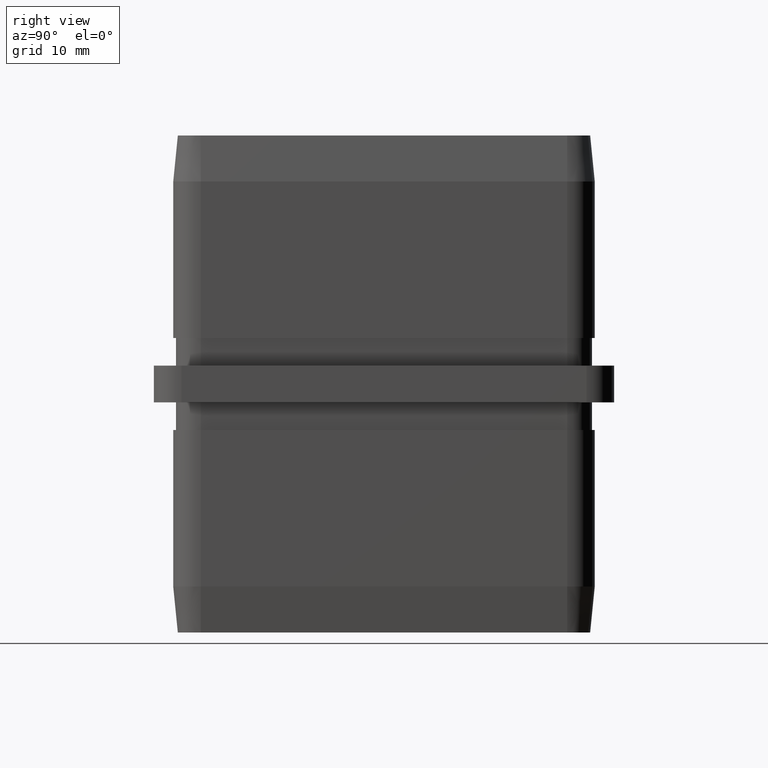
[diagram: clean part render]
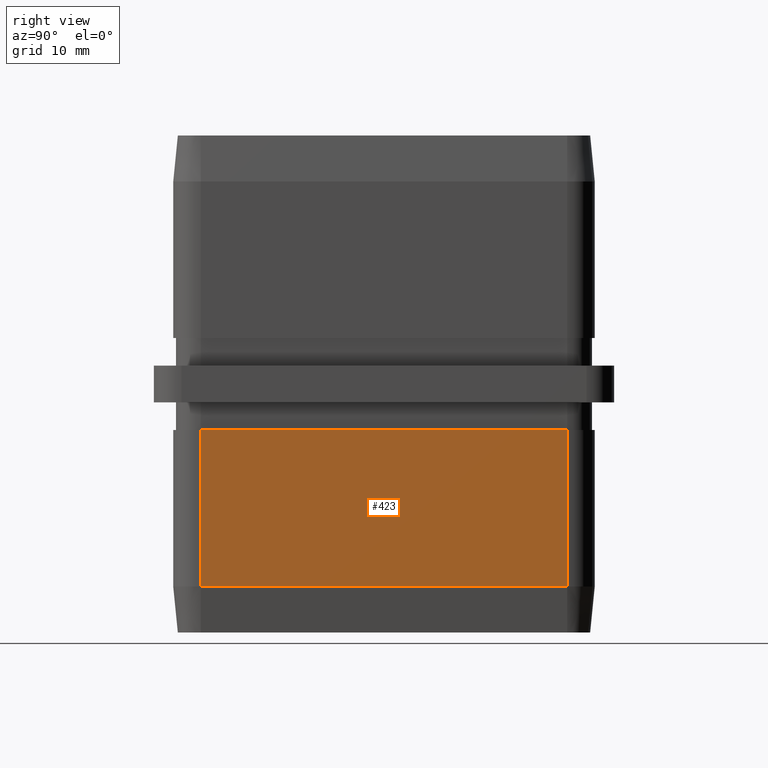
[diagram: same view with one face highlighted and labeled with its STEP entity id]
A machine part, right view. The second image highlights one B-rep face of the part: STEP entity #423.
In plain terms, the highlighted planar face has unit normal (-1, 0, 0).
Its self-contained STEP definition (entity closure, byte-faithful):
#33 = CARTESIAN_POINT ( 'NONE',  ( 12.89999999999999300, 19.90000000000000200, -22.00000000000000000 ) ) ;
#423 = ADVANCED_FACE ( 'NONE', ( #12973 ), #10082, .F. ) ;
#3419 = LINE ( 'NONE', #13840, #21947 ) ;
#3722 = AXIS2_PLACEMENT_3D ( 'NONE', #4001, #11999, #20341 ) ;
#4001 = CARTESIAN_POINT ( 'NONE',  ( 12.89999999999999100, 22.90000000000000200, 27.00000000000000000 ) ) ;
#5634 = VECTOR ( 'NONE', #6288, 1000.000000000000000 ) ;
#6288 = DIRECTION ( 'NONE',  ( 4.358601698434188300E-017, -1.000000000000000000, 0.0000000000000000000 ) ) ;
#6313 = VECTOR ( 'NONE', #15078, 1000.000000000000000 ) ;
#6598 = CARTESIAN_POINT ( 'NONE',  ( 12.89999999999999100, -19.90000000000000200, 27.00000000000000000 ) ) ;
#6688 = DIRECTION ( 'NONE',  ( 0.0000000000000000000, 0.0000000000000000000, -1.000000000000000000 ) ) ;
#7057 = EDGE_LOOP ( 'NONE', ( #9217, #19635, #12350, #22058 ) ) ;
#7947 = VERTEX_POINT ( 'NONE', #12820 ) ;
#8917 = CARTESIAN_POINT ( 'NONE',  ( 12.89999999999999100, -19.90000000000000200, -5.000000000000000000 ) ) ;
#8922 = CARTESIAN_POINT ( 'NONE',  ( 12.89999999999999300, 19.90000000000000200, -22.00000000000000000 ) ) ;
#9217 = ORIENTED_EDGE ( 'NONE', *, *, #21882, .F. ) ;
#9697 = VECTOR ( 'NONE', #6688, 1000.000000000000000 ) ;
#9751 = DIRECTION ( 'NONE',  ( -0.0000000000000000000, -0.0000000000000000000, 1.000000000000000000 ) ) ;
#10082 = PLANE ( 'NONE',  #3722 ) ;
#11857 = LINE ( 'NONE', #8922, #6313 ) ;
#11999 = DIRECTION ( 'NONE',  ( -1.000000000000000000, 0.0000000000000000000, 0.0000000000000000000 ) ) ;
#12165 = LINE ( 'NONE', #20631, #5634 ) ;
#12350 = ORIENTED_EDGE ( 'NONE', *, *, #22552, .T. ) ;
#12820 = CARTESIAN_POINT ( 'NONE',  ( 12.89999999999999500, -19.90000000000000200, -22.00000000000000000 ) ) ;
#12973 = FACE_OUTER_BOUND ( 'NONE', #7057, .T. ) ;
#13840 = CARTESIAN_POINT ( 'NONE',  ( 12.89999999999999100, 19.90000000000000600, 27.00000000000000000 ) ) ;
#15078 = DIRECTION ( 'NONE',  ( 4.358601698434188300E-017, -1.000000000000000000, 0.0000000000000000000 ) ) ;
#15771 = EDGE_CURVE ( 'NONE', #22639, #7947, #23694, .T. ) ;
#16266 = VERTEX_POINT ( 'NONE', #19844 ) ;
#19303 = EDGE_CURVE ( 'NONE', #22534, #16266, #3419, .T. ) ;
#19635 = ORIENTED_EDGE ( 'NONE', *, *, #19303, .T. ) ;
#19844 = CARTESIAN_POINT ( 'NONE',  ( 12.89999999999999000, 19.90000000000000200, -5.000000000000000000 ) ) ;
#20341 = DIRECTION ( 'NONE',  ( 0.0000000000000000000, 0.0000000000000000000, 1.000000000000000000 ) ) ;
#20631 = CARTESIAN_POINT ( 'NONE',  ( 12.89999999999999000, 19.90000000000000200, -5.000000000000000000 ) ) ;
#21882 = EDGE_CURVE ( 'NONE', #22534, #7947, #11857, .T. ) ;
#21947 = VECTOR ( 'NONE', #9751, 1000.000000000000000 ) ;
#22058 = ORIENTED_EDGE ( 'NONE', *, *, #15771, .T. ) ;
#22534 = VERTEX_POINT ( 'NONE', #33 ) ;
#22552 = EDGE_CURVE ( 'NONE', #16266, #22639, #12165, .T. ) ;
#22639 = VERTEX_POINT ( 'NONE', #8917 ) ;
#23694 = LINE ( 'NONE', #6598, #9697 ) ;